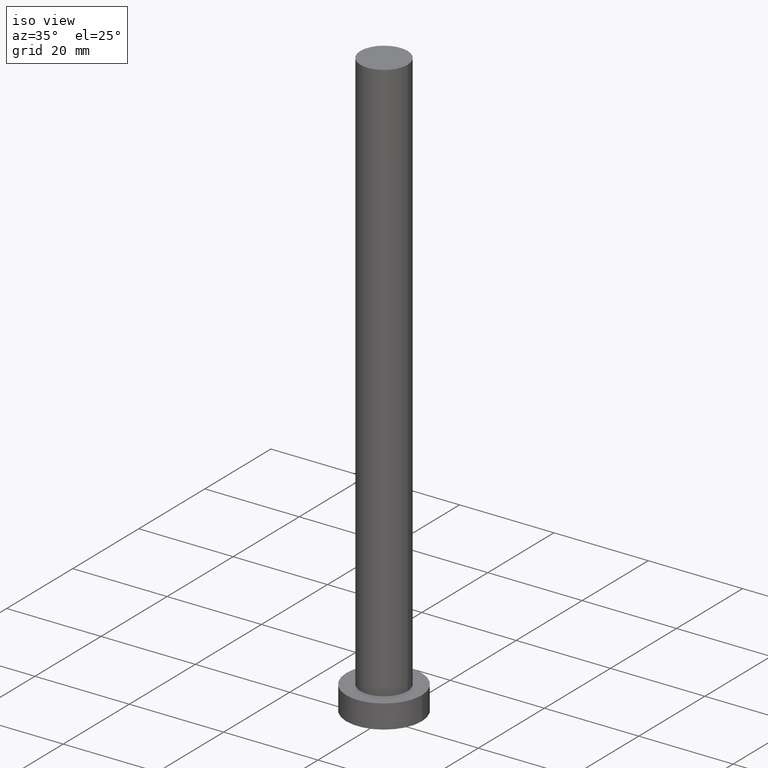
[diagram: clean part render]
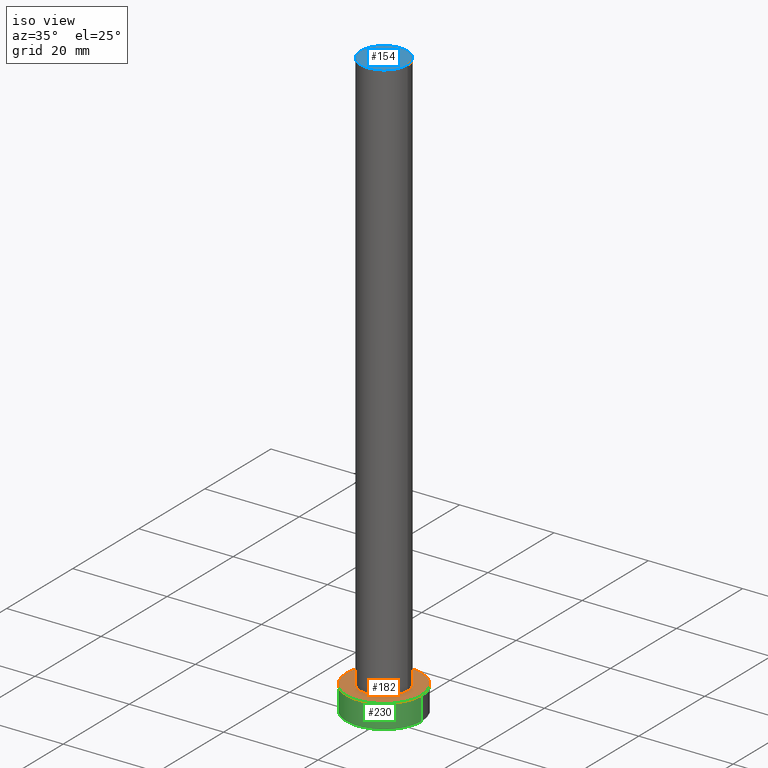
[diagram: same view with three faces highlighted in distinct colors, each labeled with its STEP entity id]
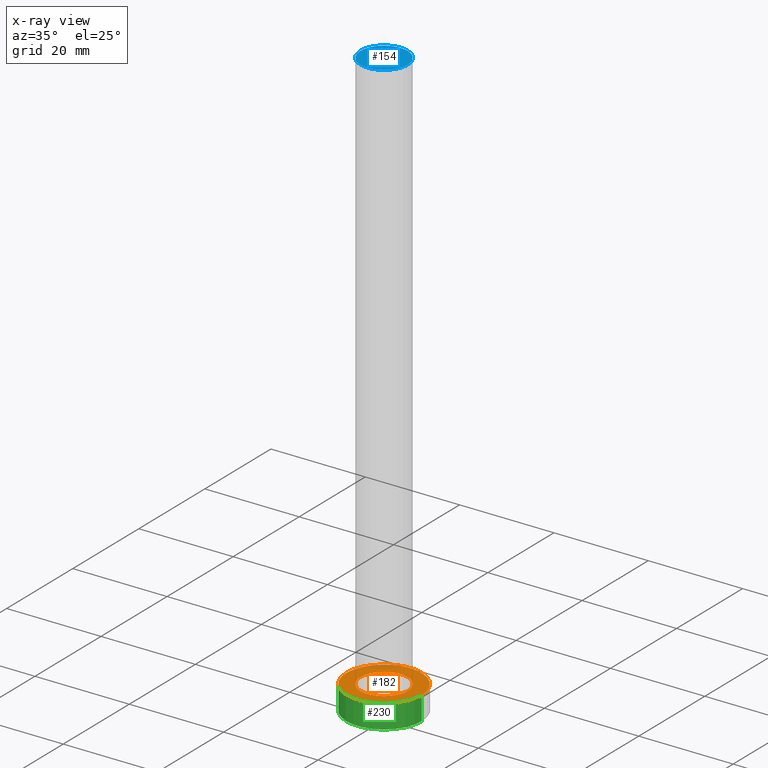
[diagram: x-ray of the same camera — body ghosted, the three highlighted faces saturated]
A machine part, iso view with three faces highlighted in distinct colors.
The next image is the same camera in x-ray (body ghosted, the three faces saturated) — at least one of them is partly hidden behind the body in this view.
Their STEP definitions:

[orange] entity #182 — the highlighted planar face has unit normal (0, 0, 1).
#6 = CIRCLE ( 'NONE', #99, 8.000000000000000000 ) ;
#8 = ORIENTED_EDGE ( 'NONE', *, *, #211, .T. ) ;
#27 = CARTESIAN_POINT ( 'NONE',  ( 0.000000000000000000, 0.000000000000000000, 5.000000000000000000 ) ) ;
#30 = EDGE_CURVE ( 'NONE', #86, #132, #104, .T. ) ;
#35 = DIRECTION ( 'NONE',  ( 1.000000000000000000, 0.000000000000000000, -0.000000000000000000 ) ) ;
#48 = FACE_BOUND ( 'NONE', #157, .T. ) ;
#57 = CARTESIAN_POINT ( 'NONE',  ( 0.000000000000000000, 0.000000000000000000, 5.000000000000000000 ) ) ;
#62 = VERTEX_POINT ( 'NONE', #125 ) ;
#74 = EDGE_LOOP ( 'NONE', ( #145, #8 ) ) ;
#86 = VERTEX_POINT ( 'NONE', #186 ) ;
#87 = DIRECTION ( 'NONE',  ( 1.000000000000000000, 0.000000000000000000, 0.000000000000000000 ) ) ;
#88 = DIRECTION ( 'NONE',  ( 1.000000000000000000, 0.000000000000000000, 0.000000000000000000 ) ) ;
#99 = AXIS2_PLACEMENT_3D ( 'NONE', #234, #129, #187 ) ;
#104 = CIRCLE ( 'NONE', #246, 5.000000000000000888 ) ;
#108 = CARTESIAN_POINT ( 'NONE',  ( 0.000000000000000000, 0.000000000000000000, 5.000000000000000000 ) ) ;
#123 = DIRECTION ( 'NONE',  ( 0.000000000000000000, 0.000000000000000000, 1.000000000000000000 ) ) ;
#125 = CARTESIAN_POINT ( 'NONE',  ( -8.000000000000000000, 0.000000000000000000, 5.000000000000000000 ) ) ;
#126 = EDGE_CURVE ( 'NONE', #132, #86, #175, .T. ) ;
#129 = DIRECTION ( 'NONE',  ( 0.000000000000000000, 0.000000000000000000, 1.000000000000000000 ) ) ;
#132 = VERTEX_POINT ( 'NONE', #223 ) ;
#143 = CIRCLE ( 'NONE', #247, 8.000000000000000000 ) ;
#145 = ORIENTED_EDGE ( 'NONE', *, *, #161, .T. ) ;
#146 = DIRECTION ( 'NONE',  ( 0.000000000000000000, 0.000000000000000000, 1.000000000000000000 ) ) ;
#153 = ORIENTED_EDGE ( 'NONE', *, *, #126, .F. ) ;
#157 = EDGE_LOOP ( 'NONE', ( #153, #183 ) ) ;
#159 = CARTESIAN_POINT ( 'NONE',  ( 0.000000000000000000, 0.000000000000000000, 5.000000000000000000 ) ) ;
#161 = EDGE_CURVE ( 'NONE', #62, #201, #6, .T. ) ;
#164 = AXIS2_PLACEMENT_3D ( 'NONE', #159, #204, #35 ) ;
#175 = CIRCLE ( 'NONE', #216, 5.000000000000000888 ) ;
#178 = FACE_OUTER_BOUND ( 'NONE', #74, .T. ) ;
#181 = DIRECTION ( 'NONE',  ( 0.000000000000000000, 0.000000000000000000, 1.000000000000000000 ) ) ;
#182 = ADVANCED_FACE ( 'NONE', ( #48, #178 ), #240, .T. ) ;
#183 = ORIENTED_EDGE ( 'NONE', *, *, #30, .F. ) ;
#186 = CARTESIAN_POINT ( 'NONE',  ( 5.000000000000000888, 6.123233995736767268E-16, 5.000000000000000000 ) ) ;
#187 = DIRECTION ( 'NONE',  ( 1.000000000000000000, 0.000000000000000000, 0.000000000000000000 ) ) ;
#200 = CARTESIAN_POINT ( 'NONE',  ( 8.000000000000000000, 9.797174393178825657E-16, 5.000000000000000000 ) ) ;
#201 = VERTEX_POINT ( 'NONE', #200 ) ;
#203 = DIRECTION ( 'NONE',  ( 1.000000000000000000, 0.000000000000000000, 0.000000000000000000 ) ) ;
#204 = DIRECTION ( 'NONE',  ( 0.000000000000000000, 0.000000000000000000, 1.000000000000000000 ) ) ;
#211 = EDGE_CURVE ( 'NONE', #201, #62, #143, .T. ) ;
#216 = AXIS2_PLACEMENT_3D ( 'NONE', #57, #123, #87 ) ;
#223 = CARTESIAN_POINT ( 'NONE',  ( -5.000000000000000888, 0.000000000000000000, 5.000000000000000000 ) ) ;
#234 = CARTESIAN_POINT ( 'NONE',  ( 0.000000000000000000, 0.000000000000000000, 5.000000000000000000 ) ) ;
#240 = PLANE ( 'NONE',  #164 ) ;
#246 = AXIS2_PLACEMENT_3D ( 'NONE', #108, #146, #88 ) ;
#247 = AXIS2_PLACEMENT_3D ( 'NONE', #27, #181, #203 ) ;

[blue] entity #154 — the highlighted planar face has unit normal (0, 0, 1).
#1 = DIRECTION ( 'NONE',  ( 1.000000000000000000, 0.000000000000000000, 0.000000000000000000 ) ) ;
#17 = CARTESIAN_POINT ( 'NONE',  ( 0.000000000000000000, 0.000000000000000000, 125.0000000000000000 ) ) ;
#31 = CIRCLE ( 'NONE', #229, 5.000000000000000888 ) ;
#53 = DIRECTION ( 'NONE',  ( 0.000000000000000000, 0.000000000000000000, 1.000000000000000000 ) ) ;
#65 = DIRECTION ( 'NONE',  ( 0.000000000000000000, 0.000000000000000000, 1.000000000000000000 ) ) ;
#66 = DIRECTION ( 'NONE',  ( 1.000000000000000000, 0.000000000000000000, 0.000000000000000000 ) ) ;
#68 = AXIS2_PLACEMENT_3D ( 'NONE', #17, #214, #142 ) ;
#89 = EDGE_CURVE ( 'NONE', #160, #150, #31, .T. ) ;
#90 = CARTESIAN_POINT ( 'NONE',  ( 0.000000000000000000, 0.000000000000000000, 125.0000000000000000 ) ) ;
#106 = PLANE ( 'NONE',  #68 ) ;
#110 = CARTESIAN_POINT ( 'NONE',  ( -5.000000000000000888, 0.000000000000000000, 125.0000000000000000 ) ) ;
#119 = CIRCLE ( 'NONE', #152, 5.000000000000000888 ) ;
#142 = DIRECTION ( 'NONE',  ( 1.000000000000000000, 0.000000000000000000, -0.000000000000000000 ) ) ;
#150 = VERTEX_POINT ( 'NONE', #179 ) ;
#152 = AXIS2_PLACEMENT_3D ( 'NONE', #167, #53, #66 ) ;
#154 = ADVANCED_FACE ( 'NONE', ( #207 ), #106, .T. ) ;
#158 = ORIENTED_EDGE ( 'NONE', *, *, #173, .T. ) ;
#160 = VERTEX_POINT ( 'NONE', #110 ) ;
#167 = CARTESIAN_POINT ( 'NONE',  ( 0.000000000000000000, 0.000000000000000000, 125.0000000000000000 ) ) ;
#173 = EDGE_CURVE ( 'NONE', #150, #160, #119, .T. ) ;
#179 = CARTESIAN_POINT ( 'NONE',  ( 5.000000000000000888, 6.123233995736767268E-16, 125.0000000000000000 ) ) ;
#185 = ORIENTED_EDGE ( 'NONE', *, *, #89, .T. ) ;
#189 = EDGE_LOOP ( 'NONE', ( #185, #158 ) ) ;
#207 = FACE_OUTER_BOUND ( 'NONE', #189, .T. ) ;
#214 = DIRECTION ( 'NONE',  ( 0.000000000000000000, 0.000000000000000000, 1.000000000000000000 ) ) ;
#229 = AXIS2_PLACEMENT_3D ( 'NONE', #90, #65, #1 ) ;

[green] entity #230 — the highlighted cylindrical surface (partial cylindrical patch) has radius 8 mm, axis along (-0, -0, -1).
#6 = CIRCLE ( 'NONE', #99, 8.000000000000000000 ) ;
#11 = CIRCLE ( 'NONE', #192, 8.000000000000000000 ) ;
#28 = EDGE_LOOP ( 'NONE', ( #141, #120, #102, #151 ) ) ;
#29 = DIRECTION ( 'NONE',  ( 0.000000000000000000, 0.000000000000000000, 1.000000000000000000 ) ) ;
#33 = CARTESIAN_POINT ( 'NONE',  ( -8.000000000000000000, 0.000000000000000000, 0.000000000000000000 ) ) ;
#36 = CARTESIAN_POINT ( 'NONE',  ( -8.000000000000000000, 0.000000000000000000, 5.000000000000000000 ) ) ;
#60 = CARTESIAN_POINT ( 'NONE',  ( 0.000000000000000000, 0.000000000000000000, 0.000000000000000000 ) ) ;
#62 = VERTEX_POINT ( 'NONE', #125 ) ;
#69 = AXIS2_PLACEMENT_3D ( 'NONE', #221, #116, #195 ) ;
#76 = VERTEX_POINT ( 'NONE', #228 ) ;
#91 = VECTOR ( 'NONE', #236, 1000.000000000000000 ) ;
#92 = EDGE_CURVE ( 'NONE', #201, #76, #124, .T. ) ;
#93 = LINE ( 'NONE', #36, #91 ) ;
#99 = AXIS2_PLACEMENT_3D ( 'NONE', #234, #129, #187 ) ;
#102 = ORIENTED_EDGE ( 'NONE', *, *, #169, .T. ) ;
#103 = DIRECTION ( 'NONE',  ( 1.000000000000000000, 0.000000000000000000, 0.000000000000000000 ) ) ;
#112 = VECTOR ( 'NONE', #122, 1000.000000000000000 ) ;
#114 = VERTEX_POINT ( 'NONE', #33 ) ;
#116 = DIRECTION ( 'NONE',  ( -0.000000000000000000, -0.000000000000000000, -1.000000000000000000 ) ) ;
#120 = ORIENTED_EDGE ( 'NONE', *, *, #161, .F. ) ;
#122 = DIRECTION ( 'NONE',  ( -0.000000000000000000, -0.000000000000000000, -1.000000000000000000 ) ) ;
#124 = LINE ( 'NONE', #206, #112 ) ;
#125 = CARTESIAN_POINT ( 'NONE',  ( -8.000000000000000000, 0.000000000000000000, 5.000000000000000000 ) ) ;
#129 = DIRECTION ( 'NONE',  ( 0.000000000000000000, 0.000000000000000000, 1.000000000000000000 ) ) ;
#135 = CYLINDRICAL_SURFACE ( 'NONE', #69, 8.000000000000000000 ) ;
#141 = ORIENTED_EDGE ( 'NONE', *, *, #92, .F. ) ;
#151 = ORIENTED_EDGE ( 'NONE', *, *, #218, .T. ) ;
#156 = FACE_OUTER_BOUND ( 'NONE', #28, .T. ) ;
#161 = EDGE_CURVE ( 'NONE', #62, #201, #6, .T. ) ;
#169 = EDGE_CURVE ( 'NONE', #62, #114, #93, .T. ) ;
#187 = DIRECTION ( 'NONE',  ( 1.000000000000000000, 0.000000000000000000, 0.000000000000000000 ) ) ;
#192 = AXIS2_PLACEMENT_3D ( 'NONE', #60, #29, #103 ) ;
#195 = DIRECTION ( 'NONE',  ( -1.000000000000000000, 0.000000000000000000, 0.000000000000000000 ) ) ;
#200 = CARTESIAN_POINT ( 'NONE',  ( 8.000000000000000000, 9.797174393178825657E-16, 5.000000000000000000 ) ) ;
#201 = VERTEX_POINT ( 'NONE', #200 ) ;
#206 = CARTESIAN_POINT ( 'NONE',  ( 8.000000000000000000, 9.797174393178825657E-16, 5.000000000000000000 ) ) ;
#218 = EDGE_CURVE ( 'NONE', #114, #76, #11, .T. ) ;
#221 = CARTESIAN_POINT ( 'NONE',  ( 0.000000000000000000, 0.000000000000000000, 5.000000000000000000 ) ) ;
#228 = CARTESIAN_POINT ( 'NONE',  ( 8.000000000000000000, 9.797174393178825657E-16, 0.000000000000000000 ) ) ;
#230 = ADVANCED_FACE ( 'NONE', ( #156 ), #135, .T. ) ;
#234 = CARTESIAN_POINT ( 'NONE',  ( 0.000000000000000000, 0.000000000000000000, 5.000000000000000000 ) ) ;
#236 = DIRECTION ( 'NONE',  ( -0.000000000000000000, -0.000000000000000000, -1.000000000000000000 ) ) ;